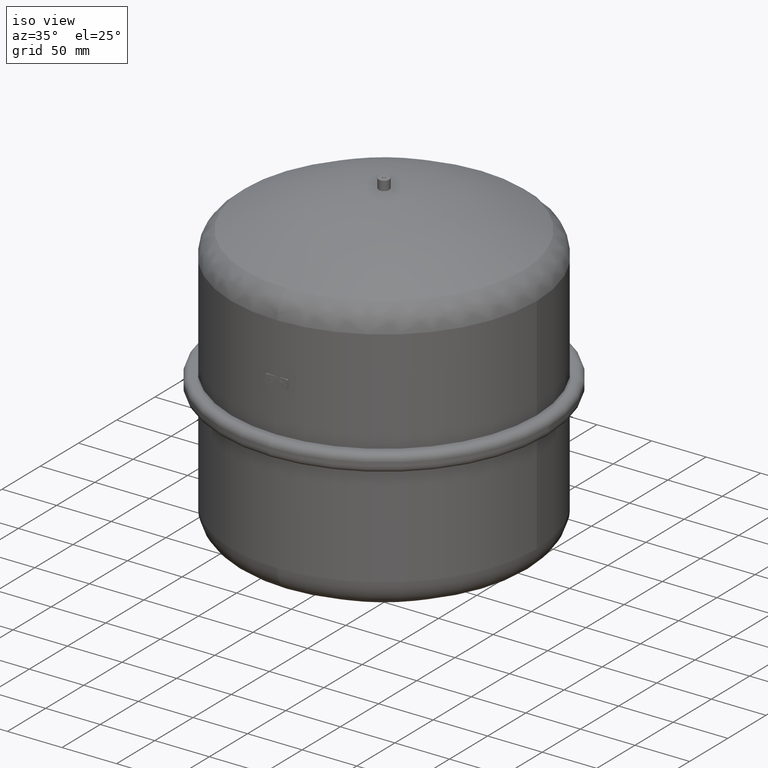
[diagram: clean part render]
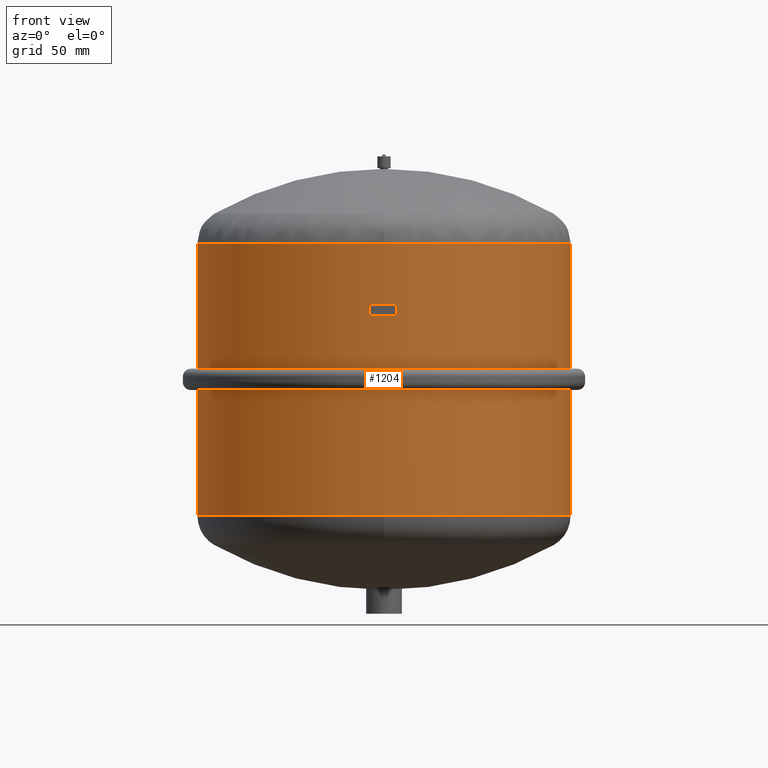
[diagram: tour spotlight — one face highlighted and labeled with its STEP entity id]
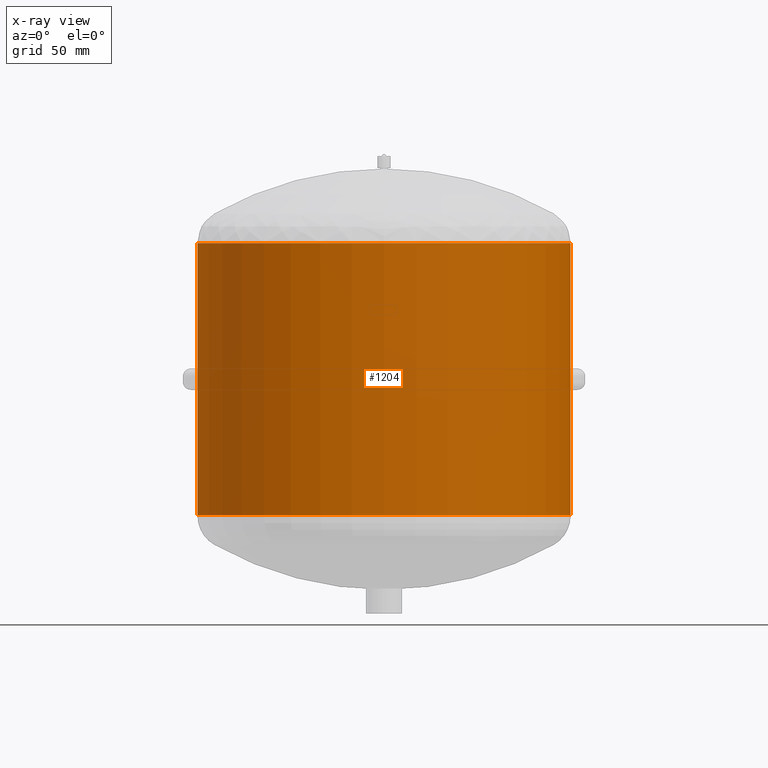
[diagram: x-ray of the same camera — body ghosted, this tour face saturated]
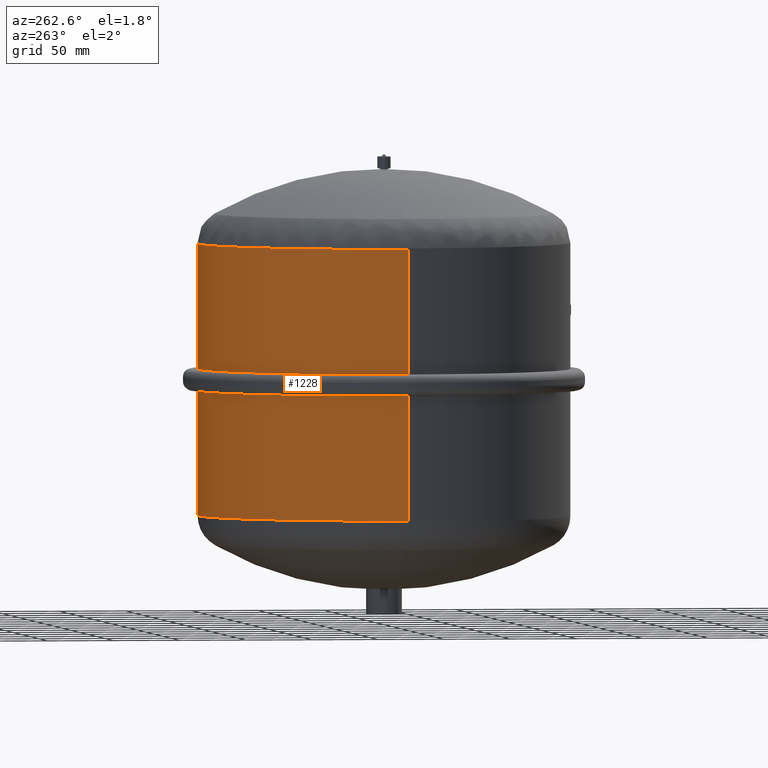
[diagram: tour spotlight — one face highlighted and labeled with its STEP entity id]
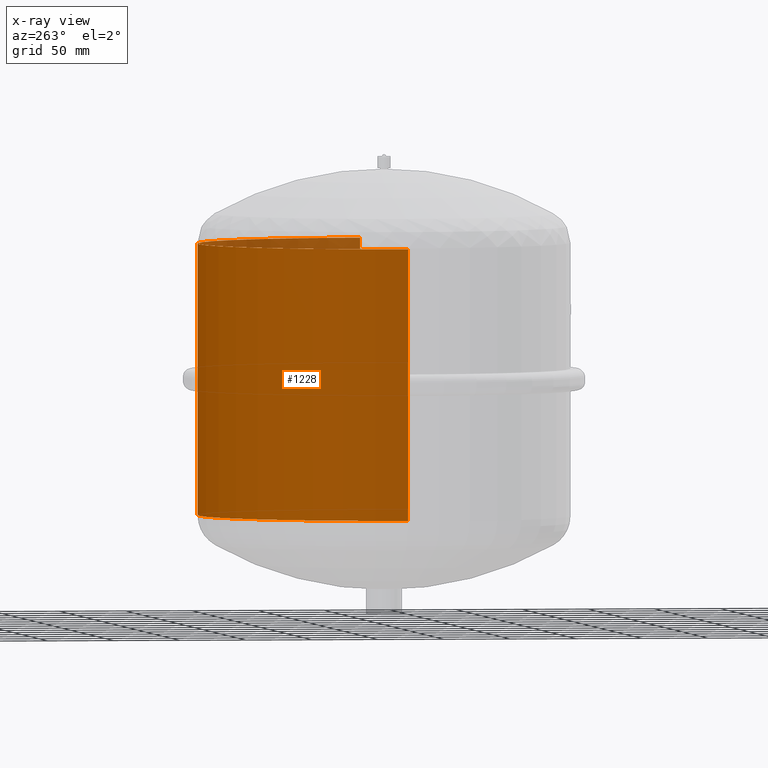
[diagram: x-ray of the same camera — body ghosted, this tour face saturated]
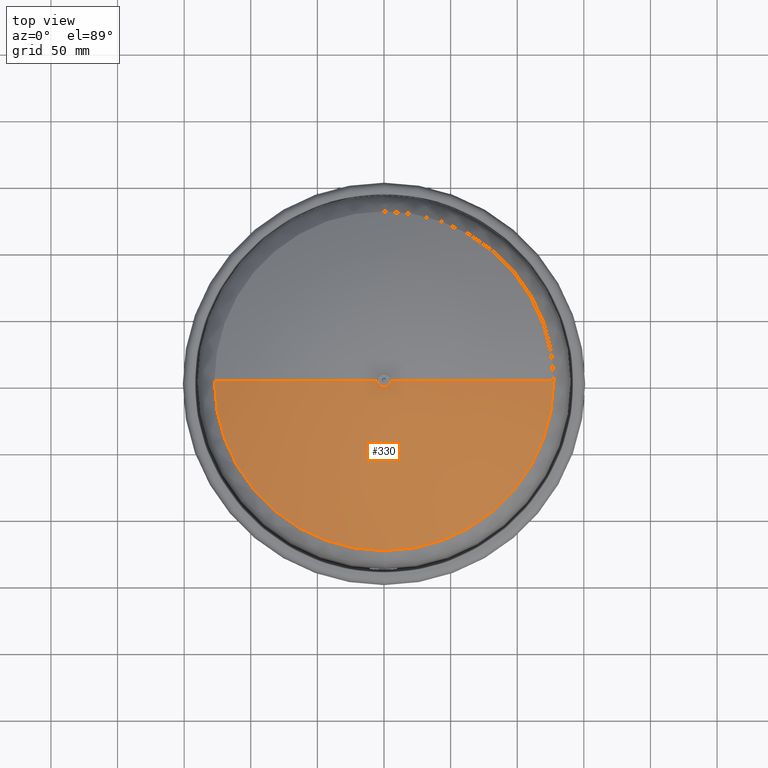
[diagram: tour spotlight — one face highlighted and labeled with its STEP entity id]
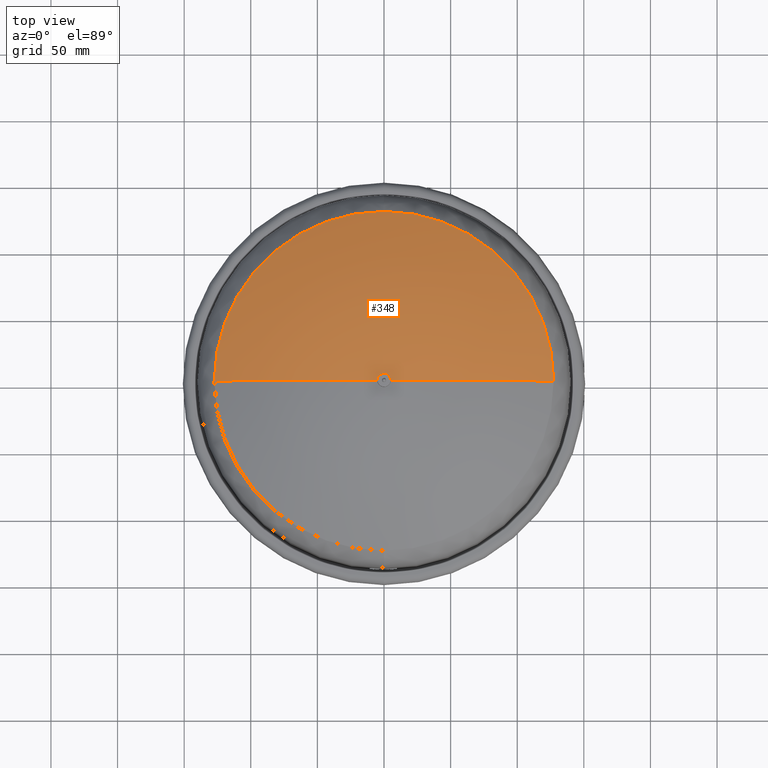
[diagram: tour spotlight — one face highlighted and labeled with its STEP entity id]
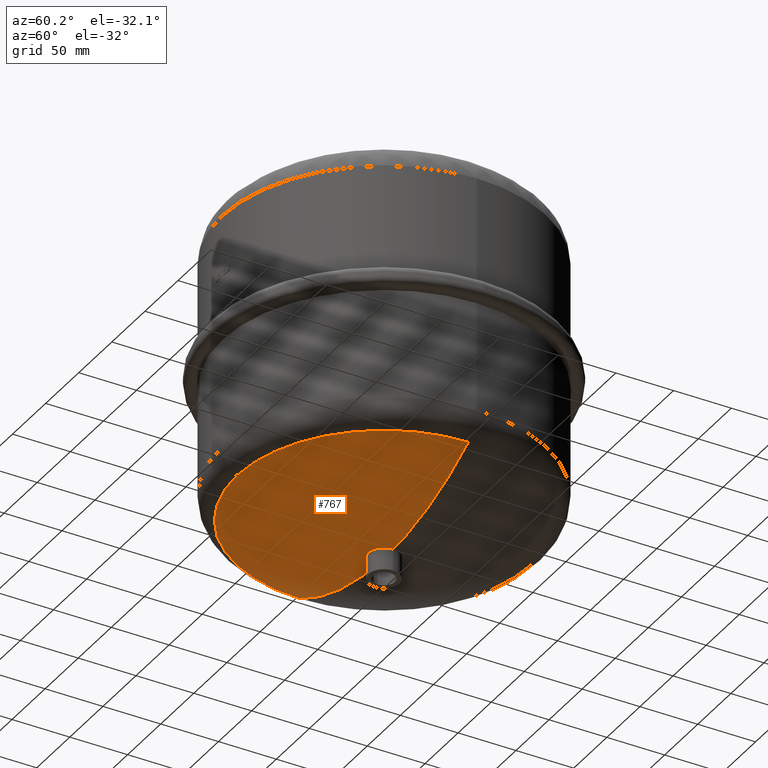
[diagram: tour spotlight — one face highlighted and labeled with its STEP entity id]
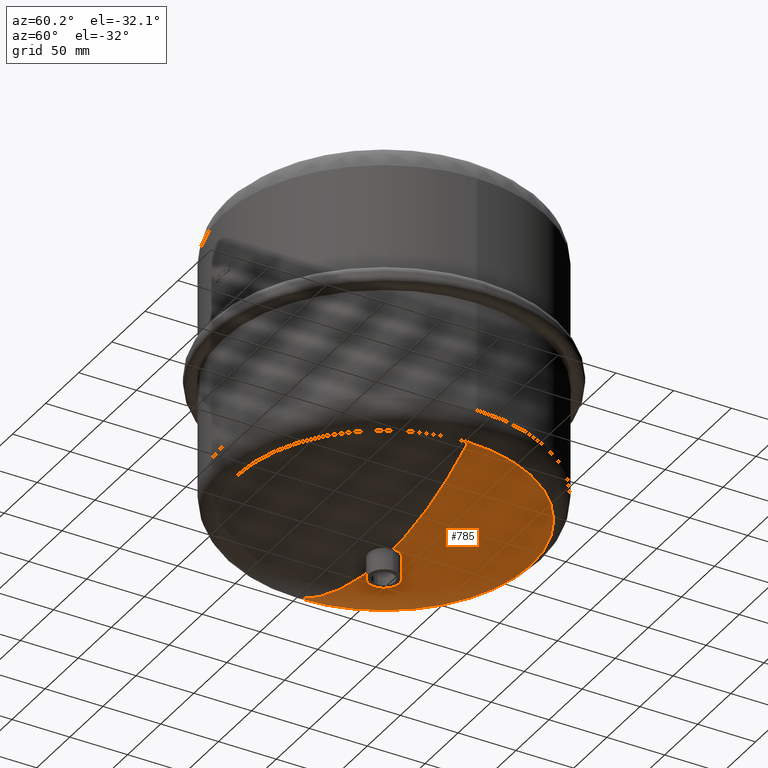
[diagram: tour spotlight — one face highlighted and labeled with its STEP entity id]
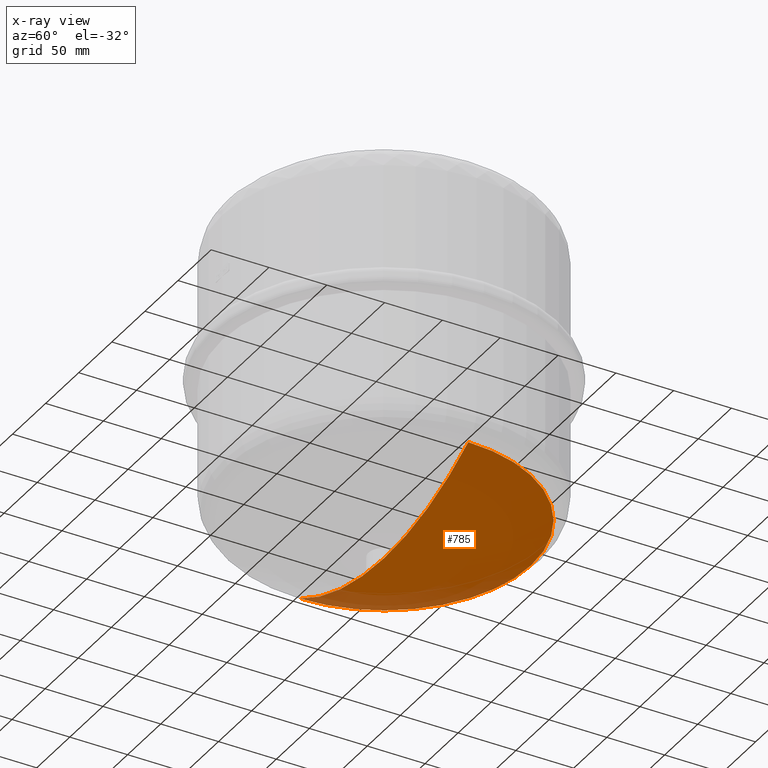
[diagram: x-ray of the same camera — body ghosted, this tour face saturated]
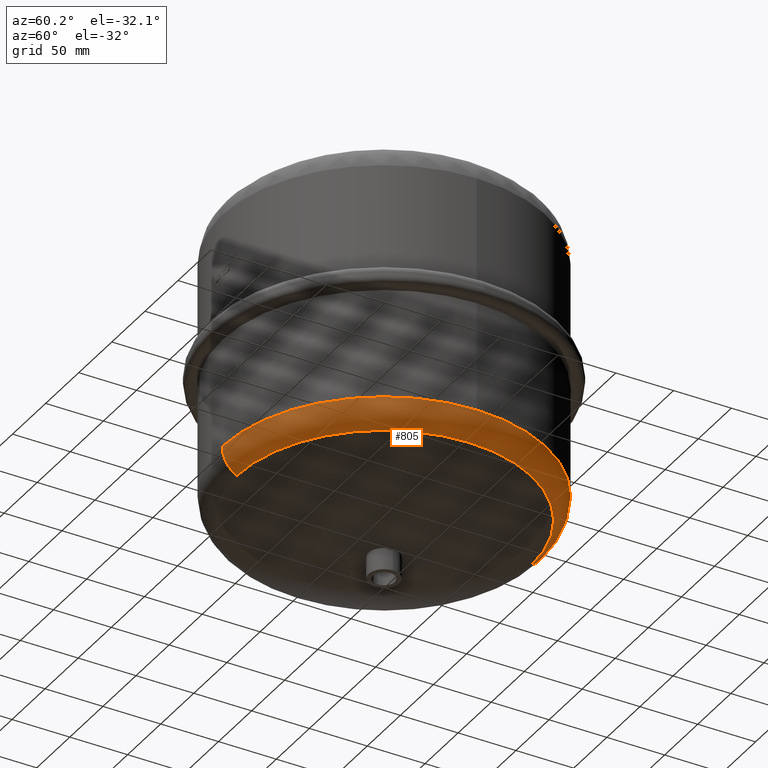
[diagram: tour spotlight — one face highlighted and labeled with its STEP entity id]
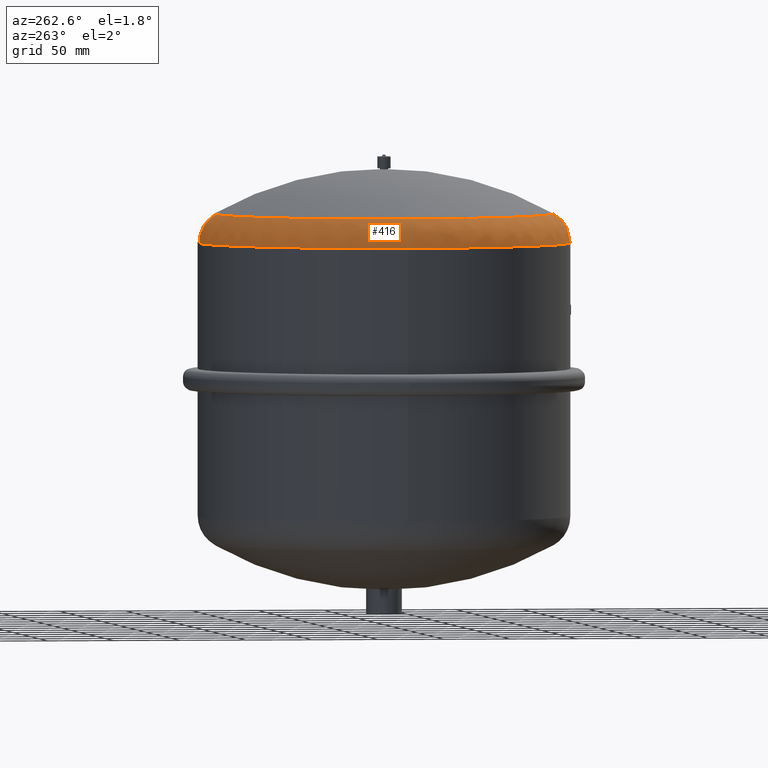
[diagram: tour spotlight — one face highlighted and labeled with its STEP entity id]
A machine part: a face-by-face anatomy tour. The part has 125 B-rep faces; the first image is the clean iso view, then the 8 largest visible faces are spotlighted one at a time (largest first), each with its STEP entity span.

Face 1 — front view, entity #1204. An x-ray twin of the same camera follows (body ghosted, this face saturated) — the face is partly hidden behind the body. In plain terms, the highlighted cylindrical surface (partial cylindrical patch) has radius 140 mm, axis along (0, 0, 1).
Definition (entity closure, byte-faithful):
#1163=CARTESIAN_POINT('',(0.0,0.0,176.0));
#1164=DIRECTION('',(0.0,0.0,1.0));
#1165=DIRECTION('',(1.0,0.0,0.0));
#1166=AXIS2_PLACEMENT_3D('',#1163,#1164,#1165);
#1167=CYLINDRICAL_SURFACE('',#1166,140.0);
#1168=CARTESIAN_POINT('',(140.0,0.0,278.0));
#1169=VERTEX_POINT('',#1168);
#1170=CARTESIAN_POINT('',(140.0,0.0,73.999999999999986));
#1171=VERTEX_POINT('',#1170);
#1172=CARTESIAN_POINT('',(140.0,0.0,278.0));
#1173=DIRECTION('',(0.0,0.0,-1.0));
#1174=VECTOR('',#1173,204.0);
#1175=LINE('',#1172,#1174);
#1176=EDGE_CURVE('',#1169,#1171,#1175,.T.);
#1177=ORIENTED_EDGE('',*,*,#1176,.F.);
#1178=CARTESIAN_POINT('',(-140.0,-1.714449E-014,278.0));
#1179=VERTEX_POINT('',#1178);
#1180=CARTESIAN_POINT('',(0.0,0.0,278.0));
#1181=DIRECTION('',(0.0,0.0,1.0));
#1182=DIRECTION('',(1.0,0.0,0.0));
#1183=AXIS2_PLACEMENT_3D('',#1180,#1181,#1182);
#1184=CIRCLE('',#1183,140.0);
#1185=EDGE_CURVE('',#1179,#1169,#1184,.T.);
#1186=ORIENTED_EDGE('',*,*,#1185,.F.);
#1187=CARTESIAN_POINT('',(-140.0,-1.714449E-014,73.999999999999986));
#1188=VERTEX_POINT('',#1187);
#1189=CARTESIAN_POINT('',(-140.0,-1.714449E-014,278.0));
#1190=DIRECTION('',(0.0,0.0,-1.0));
#1191=VECTOR('',#1190,204.0);
#1192=LINE('',#1189,#1191);
#1193=EDGE_CURVE('',#1179,#1188,#1192,.T.);
#1194=ORIENTED_EDGE('',*,*,#1193,.T.);
#1195=CARTESIAN_POINT('',(0.0,0.0,73.999999999999986));
#1196=DIRECTION('',(0.0,0.0,-1.0));
#1197=DIRECTION('',(1.0,0.0,0.0));
#1198=AXIS2_PLACEMENT_3D('',#1195,#1196,#1197);
#1199=CIRCLE('',#1198,140.0);
#1200=EDGE_CURVE('',#1171,#1188,#1199,.T.);
#1201=ORIENTED_EDGE('',*,*,#1200,.F.);
#1202=EDGE_LOOP('',(#1177,#1186,#1194,#1201));
#1203=FACE_OUTER_BOUND('',#1202,.T.);
#1204=ADVANCED_FACE('',(#1203),#1167,.T.);

Face 2 — auxiliary view, entity #1228. An x-ray twin of the same camera follows (body ghosted, this face saturated) — the face is partly hidden behind the body. In plain terms, the highlighted cylindrical surface (partial cylindrical patch) has radius 140 mm, axis along (0, 0, 1).
Definition (entity closure, byte-faithful):
#1168=CARTESIAN_POINT('',(140.0,0.0,278.0));
#1169=VERTEX_POINT('',#1168);
#1170=CARTESIAN_POINT('',(140.0,0.0,73.999999999999986));
#1171=VERTEX_POINT('',#1170);
#1172=CARTESIAN_POINT('',(140.0,0.0,278.0));
#1173=DIRECTION('',(0.0,0.0,-1.0));
#1174=VECTOR('',#1173,204.0);
#1175=LINE('',#1172,#1174);
#1176=EDGE_CURVE('',#1169,#1171,#1175,.T.);
#1178=CARTESIAN_POINT('',(-140.0,-1.714449E-014,278.0));
#1179=VERTEX_POINT('',#1178);
#1187=CARTESIAN_POINT('',(-140.0,-1.714449E-014,73.999999999999986));
#1188=VERTEX_POINT('',#1187);
#1189=CARTESIAN_POINT('',(-140.0,-1.714449E-014,278.0));
#1190=DIRECTION('',(0.0,0.0,-1.0));
#1191=VECTOR('',#1190,204.0);
#1192=LINE('',#1189,#1191);
#1193=EDGE_CURVE('',#1179,#1188,#1192,.T.);
#1205=CARTESIAN_POINT('',(0.0,0.0,176.0));
#1206=DIRECTION('',(0.0,0.0,1.0));
#1207=DIRECTION('',(1.0,0.0,0.0));
#1208=AXIS2_PLACEMENT_3D('',#1205,#1206,#1207);
#1209=CYLINDRICAL_SURFACE('',#1208,140.0);
#1210=ORIENTED_EDGE('',*,*,#1176,.T.);
#1211=CARTESIAN_POINT('',(0.0,0.0,73.999999999999986));
#1212=DIRECTION('',(0.0,0.0,-1.0));
#1213=DIRECTION('',(1.0,0.0,0.0));
#1214=AXIS2_PLACEMENT_3D('',#1211,#1212,#1213);
#1215=CIRCLE('',#1214,140.0);
#1216=EDGE_CURVE('',#1188,#1171,#1215,.T.);
#1217=ORIENTED_EDGE('',*,*,#1216,.F.);
#1218=ORIENTED_EDGE('',*,*,#1193,.F.);
#1219=CARTESIAN_POINT('',(0.0,0.0,278.0));
#1220=DIRECTION('',(0.0,0.0,1.0));
#1221=DIRECTION('',(1.0,0.0,0.0));
#1222=AXIS2_PLACEMENT_3D('',#1219,#1220,#1221);
#1223=CIRCLE('',#1222,140.0);
#1224=EDGE_CURVE('',#1169,#1179,#1223,.T.);
#1225=ORIENTED_EDGE('',*,*,#1224,.F.);
#1226=EDGE_LOOP('',(#1210,#1217,#1218,#1225));
#1227=FACE_OUTER_BOUND('',#1226,.T.);
#1228=ADVANCED_FACE('',(#1227),#1209,.T.);

Face 3 — top view, entity #330. In plain terms, the highlighted spherical surface has radius 258 mm.
Definition (entity closure, byte-faithful):
#250=CARTESIAN_POINT('',(3.355614E-015,-127.33905579399143,300.38530448648982));
#251=VERTEX_POINT('',#250);
#278=CARTESIAN_POINT('',(127.33905579399143,-3.710680E-014,300.38530448648982));
#279=VERTEX_POINT('',#278);
#287=CARTESIAN_POINT('',(-4.148636E-015,4.112114E-015,300.38530448648982));
#288=DIRECTION('',(0.0,0.0,1.0));
#289=DIRECTION('',(-1.0,0.0,0.0));
#290=AXIS2_PLACEMENT_3D('',#287,#288,#289);
#291=CIRCLE('',#290,127.33905579399143);
#292=EDGE_CURVE('',#251,#279,#291,.T.);
#297=CARTESIAN_POINT('',(-4.947573E-014,-3.710680E-014,75.999999999999943));
#298=DIRECTION('',(0.0,0.0,1.0));
#299=DIRECTION('',(1.0,0.0,0.0));
#300=AXIS2_PLACEMENT_3D('',#297,#298,#299);
#301=SPHERICAL_SURFACE('',#300,258.00000000000006);
#302=CARTESIAN_POINT('',(-6.527315E-014,-3.710680E-014,334.0));
#303=VERTEX_POINT('',#302);
#304=CARTESIAN_POINT('',(-4.947573E-014,-3.710680E-014,75.999999999999943));
#305=DIRECTION('',(0.0,1.0,0.0));
#306=DIRECTION('',(1.0,0.0,0.0));
#307=AXIS2_PLACEMENT_3D('',#304,#305,#306);
#308=CIRCLE('',#307,258.00000000000006);
#309=EDGE_CURVE('',#303,#279,#308,.T.);
#310=ORIENTED_EDGE('',*,*,#309,.F.);
#311=CARTESIAN_POINT('',(-127.33905579399145,4.112114E-015,300.38530448648982));
#312=VERTEX_POINT('',#311);
#313=CARTESIAN_POINT('',(-4.947573E-014,-3.710680E-014,75.999999999999943));
#314=DIRECTION('',(0.0,-1.0,0.0));
#315=DIRECTION('',(-1.0,0.0,0.0));
#316=AXIS2_PLACEMENT_3D('',#313,#314,#315);
#317=CIRCLE('',#316,258.00000000000006);
#318=EDGE_CURVE('',#303,#312,#317,.T.);
#319=ORIENTED_EDGE('',*,*,#318,.T.);
#320=CARTESIAN_POINT('',(-4.148636E-015,4.112114E-015,300.38530448648982));
#321=DIRECTION('',(0.0,0.0,1.0));
#322=DIRECTION('',(-1.0,0.0,0.0));
#323=AXIS2_PLACEMENT_3D('',#320,#321,#322);
#324=CIRCLE('',#323,127.33905579399143);
#325=EDGE_CURVE('',#312,#251,#324,.T.);
#326=ORIENTED_EDGE('',*,*,#325,.T.);
#327=ORIENTED_EDGE('',*,*,#292,.T.);
#328=EDGE_LOOP('',(#310,#319,#326,#327));
#329=FACE_OUTER_BOUND('',#328,.T.);
#330=ADVANCED_FACE('',(#329),#301,.T.);

Face 4 — top view, entity #348. In plain terms, the highlighted spherical surface has radius 258 mm.
Definition (entity closure, byte-faithful):
#269=CARTESIAN_POINT('',(-1.223841E-014,127.33905579399143,300.38530448648982));
#270=VERTEX_POINT('',#269);
#278=CARTESIAN_POINT('',(127.33905579399143,-3.710680E-014,300.38530448648982));
#279=VERTEX_POINT('',#278);
#280=CARTESIAN_POINT('',(-4.148636E-015,4.112114E-015,300.38530448648982));
#281=DIRECTION('',(0.0,0.0,1.0));
#282=DIRECTION('',(-1.0,0.0,0.0));
#283=AXIS2_PLACEMENT_3D('',#280,#281,#282);
#284=CIRCLE('',#283,127.33905579399143);
#285=EDGE_CURVE('',#279,#270,#284,.T.);
#302=CARTESIAN_POINT('',(-6.527315E-014,-3.710680E-014,334.0));
#303=VERTEX_POINT('',#302);
#304=CARTESIAN_POINT('',(-4.947573E-014,-3.710680E-014,75.999999999999943));
#305=DIRECTION('',(0.0,1.0,0.0));
#306=DIRECTION('',(1.0,0.0,0.0));
#307=AXIS2_PLACEMENT_3D('',#304,#305,#306);
#308=CIRCLE('',#307,258.00000000000006);
#309=EDGE_CURVE('',#303,#279,#308,.T.);
#311=CARTESIAN_POINT('',(-127.33905579399145,4.112114E-015,300.38530448648982));
#312=VERTEX_POINT('',#311);
#313=CARTESIAN_POINT('',(-4.947573E-014,-3.710680E-014,75.999999999999943));
#314=DIRECTION('',(0.0,-1.0,0.0));
#315=DIRECTION('',(-1.0,0.0,0.0));
#316=AXIS2_PLACEMENT_3D('',#313,#314,#315);
#317=CIRCLE('',#316,258.00000000000006);
#318=EDGE_CURVE('',#303,#312,#317,.T.);
#331=CARTESIAN_POINT('',(-4.947573E-014,-3.710680E-014,75.999999999999943));
#332=DIRECTION('',(0.0,0.0,1.0));
#333=DIRECTION('',(1.0,0.0,0.0));
#334=AXIS2_PLACEMENT_3D('',#331,#332,#333);
#335=SPHERICAL_SURFACE('',#334,258.00000000000006);
#336=ORIENTED_EDGE('',*,*,#309,.T.);
#337=ORIENTED_EDGE('',*,*,#285,.T.);
#338=CARTESIAN_POINT('',(-4.148636E-015,4.112114E-015,300.38530448648982));
#339=DIRECTION('',(0.0,0.0,1.0));
#340=DIRECTION('',(-1.0,0.0,0.0));
#341=AXIS2_PLACEMENT_3D('',#338,#339,#340);
#342=CIRCLE('',#341,127.33905579399143);
#343=EDGE_CURVE('',#270,#312,#342,.T.);
#344=ORIENTED_EDGE('',*,*,#343,.T.);
#345=ORIENTED_EDGE('',*,*,#318,.F.);
#346=EDGE_LOOP('',(#336,#337,#344,#345));
#347=FACE_OUTER_BOUND('',#346,.T.);
#348=ADVANCED_FACE('',(#347),#335,.T.);

Face 5 — auxiliary view, entity #767. In plain terms, the highlighted spherical surface has radius 258 mm.
Definition (entity closure, byte-faithful):
#689=CARTESIAN_POINT('',(3.355614E-015,-127.33905579399143,51.614695513510156));
#690=VERTEX_POINT('',#689);
#715=CARTESIAN_POINT('',(-127.33905579399145,4.112114E-015,51.614695513510199));
#716=VERTEX_POINT('',#715);
#724=CARTESIAN_POINT('',(-4.148636E-015,4.112114E-015,51.614695513510178));
#725=DIRECTION('',(0.0,0.0,1.0));
#726=DIRECTION('',(-1.0,0.0,0.0));
#727=AXIS2_PLACEMENT_3D('',#724,#725,#726);
#728=CIRCLE('',#727,127.33905579399143);
#729=EDGE_CURVE('',#716,#690,#728,.T.);
#734=CARTESIAN_POINT('',(-4.947573E-014,-3.710680E-014,276.00000000000006));
#735=DIRECTION('',(0.0,0.0,1.0));
#736=DIRECTION('',(1.0,0.0,0.0));
#737=AXIS2_PLACEMENT_3D('',#734,#735,#736);
#738=SPHERICAL_SURFACE('',#737,258.00000000000006);
#739=CARTESIAN_POINT('',(127.33905579399143,-3.710680E-014,51.614695513510163));
#740=VERTEX_POINT('',#739);
#741=CARTESIAN_POINT('',(-6.527315E-014,-3.710680E-014,18.0));
#742=VERTEX_POINT('',#741);
#743=CARTESIAN_POINT('',(-4.947573E-014,-3.710680E-014,276.00000000000006));
#744=DIRECTION('',(0.0,1.0,0.0));
#745=DIRECTION('',(1.0,0.0,0.0));
#746=AXIS2_PLACEMENT_3D('',#743,#744,#745);
#747=CIRCLE('',#746,258.00000000000006);
#748=EDGE_CURVE('',#740,#742,#747,.T.);
#749=ORIENTED_EDGE('',*,*,#748,.F.);
#750=CARTESIAN_POINT('',(-4.148636E-015,4.112114E-015,51.614695513510178));
#751=DIRECTION('',(0.0,0.0,1.0));
#752=DIRECTION('',(-1.0,0.0,0.0));
#753=AXIS2_PLACEMENT_3D('',#750,#751,#752);
#754=CIRCLE('',#753,127.33905579399143);
#755=EDGE_CURVE('',#690,#740,#754,.T.);
#756=ORIENTED_EDGE('',*,*,#755,.F.);
#757=ORIENTED_EDGE('',*,*,#729,.F.);
#758=CARTESIAN_POINT('',(-4.947573E-014,-3.710680E-014,276.00000000000006));
#759=DIRECTION('',(0.0,-1.0,0.0));
#760=DIRECTION('',(-1.0,0.0,0.0));
#761=AXIS2_PLACEMENT_3D('',#758,#759,#760);
#762=CIRCLE('',#761,258.00000000000006);
#763=EDGE_CURVE('',#716,#742,#762,.T.);
#764=ORIENTED_EDGE('',*,*,#763,.T.);
#765=EDGE_LOOP('',(#749,#756,#757,#764));
#766=FACE_OUTER_BOUND('',#765,.T.);
#767=ADVANCED_FACE('',(#766),#738,.T.);

Face 6 — auxiliary view, entity #785. An x-ray twin of the same camera follows (body ghosted, this face saturated) — the face is partly hidden behind the body. In plain terms, the highlighted spherical surface has radius 258 mm.
Definition (entity closure, byte-faithful):
#706=CARTESIAN_POINT('',(-1.223841E-014,127.33905579399143,51.614695513510206));
#707=VERTEX_POINT('',#706);
#715=CARTESIAN_POINT('',(-127.33905579399145,4.112114E-015,51.614695513510199));
#716=VERTEX_POINT('',#715);
#717=CARTESIAN_POINT('',(-4.148636E-015,4.112114E-015,51.614695513510178));
#718=DIRECTION('',(0.0,0.0,1.0));
#719=DIRECTION('',(-1.0,0.0,0.0));
#720=AXIS2_PLACEMENT_3D('',#717,#718,#719);
#721=CIRCLE('',#720,127.33905579399143);
#722=EDGE_CURVE('',#707,#716,#721,.T.);
#739=CARTESIAN_POINT('',(127.33905579399143,-3.710680E-014,51.614695513510163));
#740=VERTEX_POINT('',#739);
#741=CARTESIAN_POINT('',(-6.527315E-014,-3.710680E-014,18.0));
#742=VERTEX_POINT('',#741);
#743=CARTESIAN_POINT('',(-4.947573E-014,-3.710680E-014,276.00000000000006));
#744=DIRECTION('',(0.0,1.0,0.0));
#745=DIRECTION('',(1.0,0.0,0.0));
#746=AXIS2_PLACEMENT_3D('',#743,#744,#745);
#747=CIRCLE('',#746,258.00000000000006);
#748=EDGE_CURVE('',#740,#742,#747,.T.);
#758=CARTESIAN_POINT('',(-4.947573E-014,-3.710680E-014,276.00000000000006));
#759=DIRECTION('',(0.0,-1.0,0.0));
#760=DIRECTION('',(-1.0,0.0,0.0));
#761=AXIS2_PLACEMENT_3D('',#758,#759,#760);
#762=CIRCLE('',#761,258.00000000000006);
#763=EDGE_CURVE('',#716,#742,#762,.T.);
#768=CARTESIAN_POINT('',(-4.947573E-014,-3.710680E-014,276.00000000000006));
#769=DIRECTION('',(0.0,0.0,1.0));
#770=DIRECTION('',(1.0,0.0,0.0));
#771=AXIS2_PLACEMENT_3D('',#768,#769,#770);
#772=SPHERICAL_SURFACE('',#771,258.00000000000006);
#773=ORIENTED_EDGE('',*,*,#748,.T.);
#774=ORIENTED_EDGE('',*,*,#763,.F.);
#775=ORIENTED_EDGE('',*,*,#722,.F.);
#776=CARTESIAN_POINT('',(-4.148636E-015,4.112114E-015,51.614695513510178));
#777=DIRECTION('',(0.0,0.0,1.0));
#778=DIRECTION('',(-1.0,0.0,0.0));
#779=AXIS2_PLACEMENT_3D('',#776,#777,#778);
#780=CIRCLE('',#779,127.33905579399143);
#781=EDGE_CURVE('',#740,#707,#780,.T.);
#782=ORIENTED_EDGE('',*,*,#781,.F.);
#783=EDGE_LOOP('',(#773,#774,#775,#782));
#784=FACE_OUTER_BOUND('',#783,.T.);
#785=ADVANCED_FACE('',(#784),#772,.T.);

Face 7 — auxiliary view, entity #805. In plain terms, the highlighted toroidal blend (fillet) surface has major radius 115 mm and minor (blend) radius 25 mm.
Definition (entity closure, byte-faithful):
#655=CARTESIAN_POINT('',(140.0,1.726252E-014,73.35745757615453));
#656=VERTEX_POINT('',#655);
#663=CARTESIAN_POINT('',(-9.759320E-015,140.0,73.357457576154587));
#664=VERTEX_POINT('',#663);
#665=CARTESIAN_POINT('',(-1.190815E-016,1.180331E-016,73.357457576154559));
#666=DIRECTION('',(0.0,0.0,1.0));
#667=DIRECTION('',(-1.0,0.0,0.0));
#668=AXIS2_PLACEMENT_3D('',#665,#666,#667);
#669=CIRCLE('',#668,140.0);
#670=EDGE_CURVE('',#656,#664,#669,.T.);
#687=CARTESIAN_POINT('',(7.385169E-015,-140.0,73.35745757615453));
#688=VERTEX_POINT('',#687);
#689=CARTESIAN_POINT('',(3.355614E-015,-127.33905579399143,51.614695513510156));
#690=VERTEX_POINT('',#689);
#691=CARTESIAN_POINT('',(7.385169E-015,-115.00000000000001,73.357457576154559));
#692=DIRECTION('',(1.0,0.0,0.0));
#693=DIRECTION('',(0.0,-1.0,0.0));
#694=AXIS2_PLACEMENT_3D('',#691,#692,#693);
#695=CIRCLE('',#694,25.0);
#696=EDGE_CURVE('',#688,#690,#695,.T.);
#706=CARTESIAN_POINT('',(-1.223841E-014,127.33905579399143,51.614695513510206));
#707=VERTEX_POINT('',#706);
#708=CARTESIAN_POINT('',(-6.697804E-015,115.00000000000001,73.357457576154616));
#709=DIRECTION('',(-1.0,0.0,0.0));
#710=DIRECTION('',(0.0,1.0,0.0));
#711=AXIS2_PLACEMENT_3D('',#708,#709,#710);
#712=CIRCLE('',#711,25.0);
#713=EDGE_CURVE('',#664,#707,#712,.T.);
#739=CARTESIAN_POINT('',(127.33905579399143,-3.710680E-014,51.614695513510163));
#740=VERTEX_POINT('',#739);
#750=CARTESIAN_POINT('',(-4.148636E-015,4.112114E-015,51.614695513510178));
#751=DIRECTION('',(0.0,0.0,1.0));
#752=DIRECTION('',(-1.0,0.0,0.0));
#753=AXIS2_PLACEMENT_3D('',#750,#751,#752);
#754=CIRCLE('',#753,127.33905579399143);
#755=EDGE_CURVE('',#690,#740,#754,.T.);
#776=CARTESIAN_POINT('',(-4.148636E-015,4.112114E-015,51.614695513510178));
#777=DIRECTION('',(0.0,0.0,1.0));
#778=DIRECTION('',(-1.0,0.0,0.0));
#779=AXIS2_PLACEMENT_3D('',#776,#777,#778);
#780=CIRCLE('',#779,127.33905579399143);
#781=EDGE_CURVE('',#740,#707,#780,.T.);
#786=CARTESIAN_POINT('',(7.385169E-015,1.180331E-016,73.357457576154587));
#787=DIRECTION('',(1.853286E-016,-1.836970E-016,1.0));
#788=DIRECTION('',(0.0,-1.0,0.0));
#789=AXIS2_PLACEMENT_3D('',#786,#787,#788);
#790=TOROIDAL_SURFACE('',#789,115.00000000000001,25.0);
#791=ORIENTED_EDGE('',*,*,#696,.T.);
#792=ORIENTED_EDGE('',*,*,#755,.T.);
#793=ORIENTED_EDGE('',*,*,#781,.T.);
#794=ORIENTED_EDGE('',*,*,#713,.F.);
#795=ORIENTED_EDGE('',*,*,#670,.F.);
#796=CARTESIAN_POINT('',(-1.190815E-016,1.180331E-016,73.357457576154559));
#797=DIRECTION('',(0.0,0.0,1.0));
#798=DIRECTION('',(-1.0,0.0,0.0));
#799=AXIS2_PLACEMENT_3D('',#796,#797,#798);
#800=CIRCLE('',#799,140.0);
#801=EDGE_CURVE('',#688,#656,#800,.T.);
#802=ORIENTED_EDGE('',*,*,#801,.F.);
#803=EDGE_LOOP('',(#791,#792,#793,#794,#795,#802));
#804=FACE_OUTER_BOUND('',#803,.T.);
#805=ADVANCED_FACE('',(#804),#790,.T.);

Face 8 — auxiliary view, entity #416. In plain terms, the highlighted face is a freeform B-spline surface patch.
Definition (entity closure, byte-faithful):
#153=CARTESIAN_POINT('',(-139.99999999999997,1.180331E-016,278.64254242384538));
#154=VERTEX_POINT('',#153);
#178=CARTESIAN_POINT('',(7.385169E-015,-140.0,278.64254242384544));
#179=VERTEX_POINT('',#178);
#187=CARTESIAN_POINT('',(-1.190815E-016,1.180331E-016,278.64254242384544));
#188=DIRECTION('',(0.0,0.0,1.0));
#189=DIRECTION('',(-1.0,0.0,0.0));
#190=AXIS2_PLACEMENT_3D('',#187,#188,#189);
#191=CIRCLE('',#190,140.0);
#192=EDGE_CURVE('',#154,#179,#191,.T.);
#250=CARTESIAN_POINT('',(3.355614E-015,-127.33905579399143,300.38530448648982));
#251=VERTEX_POINT('',#250);
#252=CARTESIAN_POINT('',(7.385169E-015,-115.00000000000001,278.64254242384544));
#253=DIRECTION('',(-1.0,0.0,0.0));
#254=DIRECTION('',(0.0,-1.0,0.0));
#255=AXIS2_PLACEMENT_3D('',#252,#253,#254);
#256=CIRCLE('',#255,25.0);
#257=EDGE_CURVE('',#179,#251,#256,.T.);
#260=CARTESIAN_POINT('',(-9.759320E-015,140.0,278.64254242384544));
#261=VERTEX_POINT('',#260);
#269=CARTESIAN_POINT('',(-1.223841E-014,127.33905579399143,300.38530448648982));
#270=VERTEX_POINT('',#269);
#271=CARTESIAN_POINT('',(-6.697804E-015,115.00000000000001,278.64254242384544));
#272=DIRECTION('',(1.0,0.0,0.0));
#273=DIRECTION('',(0.0,1.0,0.0));
#274=AXIS2_PLACEMENT_3D('',#271,#272,#273);
#275=CIRCLE('',#274,25.0);
#276=EDGE_CURVE('',#261,#270,#275,.T.);
#311=CARTESIAN_POINT('',(-127.33905579399145,4.112114E-015,300.38530448648982));
#312=VERTEX_POINT('',#311);
#320=CARTESIAN_POINT('',(-4.148636E-015,4.112114E-015,300.38530448648982));
#321=DIRECTION('',(0.0,0.0,1.0));
#322=DIRECTION('',(-1.0,0.0,0.0));
#323=AXIS2_PLACEMENT_3D('',#320,#321,#322);
#324=CIRCLE('',#323,127.33905579399143);
#325=EDGE_CURVE('',#312,#251,#324,.T.);
#338=CARTESIAN_POINT('',(-4.148636E-015,4.112114E-015,300.38530448648982));
#339=DIRECTION('',(0.0,0.0,1.0));
#340=DIRECTION('',(-1.0,0.0,0.0));
#341=AXIS2_PLACEMENT_3D('',#338,#339,#340);
#342=CIRCLE('',#341,127.33905579399143);
#343=EDGE_CURVE('',#270,#312,#342,.T.);
#349=CARTESIAN_POINT('',(-3.636288E-015,90.000000000000028,278.64254242384538));
#350=CARTESIAN_POINT('',(-8.269503E-015,89.999999999999957,303.64254242384544));
#351=CARTESIAN_POINT('',(-1.133102E-014,115.00000000000001,303.64254242384544));
#352=CARTESIAN_POINT('',(-1.439253E-014,140.00000000000009,303.64254242384544));
#353=CARTESIAN_POINT('',(-9.759320E-015,140.0,278.64254242384538));
#354=CARTESIAN_POINT('',(-90.000000000000014,90.0,278.64254242384538));
#355=CARTESIAN_POINT('',(-89.999999999999957,89.999999999999943,303.64254242384544));
#356=CARTESIAN_POINT('',(-115.0,114.99999999999997,303.64254242384544));
#357=CARTESIAN_POINT('',(-140.00000000000009,140.00000000000006,303.64254242384544));
#358=CARTESIAN_POINT('',(-140.0,139.99999999999994,278.64254242384538));
#359=CARTESIAN_POINT('',(-90.000000000000014,-1.090342E-014,278.64254242384538));
#360=CARTESIAN_POINT('',(-89.999999999999957,-6.310999E-015,303.64254242384544));
#361=CARTESIAN_POINT('',(-115.00000000000001,-9.372514E-015,303.64254242384544));
#362=CARTESIAN_POINT('',(-140.00000000000009,-1.243403E-014,303.64254242384544));
#363=CARTESIAN_POINT('',(-140.0,-1.702646E-014,278.64254242384538));
#364=CARTESIAN_POINT('',(-89.999999999999986,-90.000000000000028,278.64254242384538));
#365=CARTESIAN_POINT('',(-89.999999999999929,-89.999999999999943,303.64254242384544));
#366=CARTESIAN_POINT('',(-114.99999999999997,-115.0,303.64254242384544));
#367=CARTESIAN_POINT('',(-140.00000000000003,-140.00000000000006,303.64254242384544));
#368=CARTESIAN_POINT('',(-139.99999999999994,-140.0,278.64254242384538));
#369=CARTESIAN_POINT('',(1.840663E-014,-90.000000000000028,278.64254242384538));
#370=CARTESIAN_POINT('',(1.377341E-014,-89.999999999999957,303.64254242384544));
#371=CARTESIAN_POINT('',(1.683493E-014,-115.00000000000001,303.64254242384544));
#372=CARTESIAN_POINT('',(1.989644E-014,-140.00000000000009,303.64254242384544));
#373=CARTESIAN_POINT('',(2.452966E-014,-140.0,278.64254242384538));
#374=CARTESIAN_POINT('',(90.000000000000043,-90.0,278.64254242384538));
#375=CARTESIAN_POINT('',(89.999999999999957,-89.999999999999929,303.64254242384544));
#376=CARTESIAN_POINT('',(115.0,-114.99999999999997,303.64254242384544));
#377=CARTESIAN_POINT('',(140.00000000000009,-140.00000000000003,303.64254242384544));
#378=CARTESIAN_POINT('',(140.0,-139.99999999999994,278.64254242384538));
#379=CARTESIAN_POINT('',(90.000000000000043,1.113949E-014,278.64254242384538));
#380=CARTESIAN_POINT('',(89.999999999999957,1.573192E-014,303.64254242384544));
#381=CARTESIAN_POINT('',(115.00000000000001,1.879343E-014,303.64254242384544));
#382=CARTESIAN_POINT('',(140.00000000000009,2.185495E-014,303.64254242384544));
#383=CARTESIAN_POINT('',(140.0,1.726252E-014,278.64254242384538));
#384=CARTESIAN_POINT('',(90.000000000000014,90.000000000000028,278.64254242384538));
#385=CARTESIAN_POINT('',(89.999999999999929,89.999999999999957,303.64254242384544));
#386=CARTESIAN_POINT('',(114.99999999999997,115.0,303.64254242384544));
#387=CARTESIAN_POINT('',(140.00000000000003,140.00000000000009,303.64254242384544));
#388=CARTESIAN_POINT('',(139.99999999999994,140.0,278.64254242384538));
#389=CARTESIAN_POINT('',(-3.636288E-015,90.000000000000028,278.64254242384538));
#390=CARTESIAN_POINT('',(-8.269503E-015,89.999999999999957,303.64254242384544));
#391=CARTESIAN_POINT('',(-1.133102E-014,115.00000000000001,303.64254242384544));
#392=CARTESIAN_POINT('',(-1.439253E-014,140.00000000000009,303.64254242384544));
#393=CARTESIAN_POINT('',(-9.759320E-015,140.0,278.64254242384538));
#401=(BOUNDED_SURFACE()B_SPLINE_SURFACE(2,2,((#349,#354,#359,#364,#369,#374,#379,#384,#389),(#350,#355,#360,#365,#370,#375,#380,#385,#390),(#351,#356,#361,#366,#371,#376,#381,#386,#391),(#352,#357,#362,#367,#372,#377,#382,#387,#392),(#353,#358,#363,#368,#373,#378,#383,#388,#393)),.UNSPECIFIED.,.F.,.T.,.U.)B_SPLINE_SURFACE_WITH_KNOTS((3,2,3),(3,2,2,2,3),(-3.141592653589796,-1.570796326794897,3.302440E-015),(0.0,1.570796326794897,3.141592653589793,4.71238898038469,6.283185307179586),.UNSPECIFIED.)GEOMETRIC_REPRESENTATION_ITEM()RATIONAL_B_SPLINE_SURFACE(((1.0,0.707106781186548,1.0,0.707106781186548,1.0,0.707106781186548,1.0,0.707106781186548,1.0),(0.707106781186546,0.499999999999999,0.707106781186546,0.499999999999999,0.707106781186546,0.499999999999999,0.707106781186546,0.499999999999999,0.707106781186546),(1.0,0.707106781186548,1.0,0.707106781186548,1.0,0.707106781186548,1.0,0.707106781186548,1.0),(0.707106781186545,0.499999999999998,0.707106781186545,0.499999999999998,0.707106781186545,0.499999999999998,0.707106781186545,0.499999999999998,0.707106781186545),(1.0,0.707106781186548,1.0,0.707106781186548,1.0,0.707106781186548,1.0,0.707106781186548,1.0)))REPRESENTATION_ITEM('')SURFACE());
#402=ORIENTED_EDGE('',*,*,#257,.T.);
#403=ORIENTED_EDGE('',*,*,#325,.F.);
#404=ORIENTED_EDGE('',*,*,#343,.F.);
#405=ORIENTED_EDGE('',*,*,#276,.F.);
#406=CARTESIAN_POINT('',(-1.190815E-016,1.180331E-016,278.64254242384544));
#407=DIRECTION('',(0.0,0.0,1.0));
#408=DIRECTION('',(-1.0,0.0,0.0));
#409=AXIS2_PLACEMENT_3D('',#406,#407,#408);
#410=CIRCLE('',#409,140.0);
#411=EDGE_CURVE('',#261,#154,#410,.T.);
#412=ORIENTED_EDGE('',*,*,#411,.T.);
#413=ORIENTED_EDGE('',*,*,#192,.T.);
#414=EDGE_LOOP('',(#402,#403,#404,#405,#412,#413));
#415=FACE_OUTER_BOUND('',#414,.T.);
#416=ADVANCED_FACE('',(#415),#401,.T.);